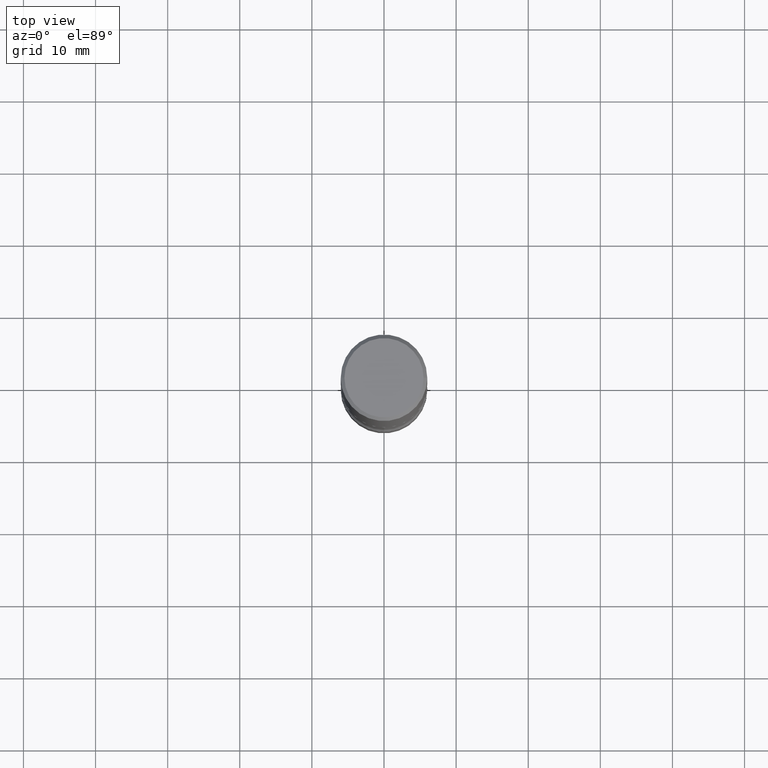
[diagram: clean part render]
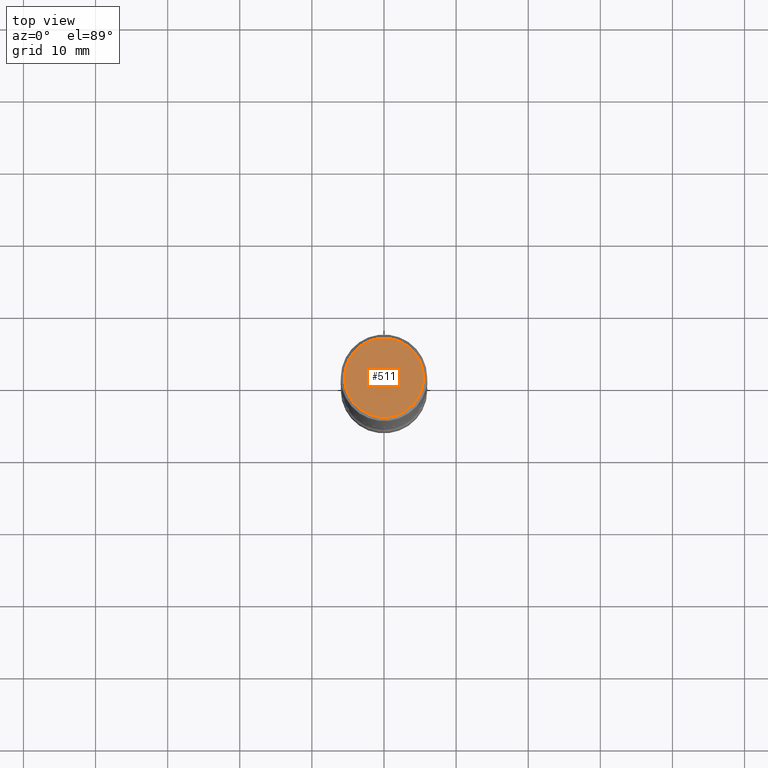
[diagram: same view with one face highlighted and labeled with its STEP entity id]
A machine part, top view. The second image highlights one B-rep face of the part: STEP entity #511.
In plain terms, the highlighted planar face has unit normal (0, -0, -1).
Its self-contained STEP definition (entity closure, byte-faithful):
#17 = CARTESIAN_POINT ( 'NONE',  ( -0.2162000000000002531, 1.544631344304203944E-15, -1.707404996041232555E-17 ) ) ;
#32 = AXIS2_PLACEMENT_3D ( 'NONE', #535, #457, #147 ) ;
#46 = ORIENTED_EDGE ( 'NONE', *, *, #462, .T. ) ;
#59 = PLANE ( 'NONE',  #32 ) ;
#74 = CIRCLE ( 'NONE', #330, 0.2162000000000002531 ) ;
#96 = CARTESIAN_POINT ( 'NONE',  ( 0.2162000000000002531, -1.586759460484353960E-15, -1.707404996039081677E-17 ) ) ;
#127 = CIRCLE ( 'NONE', #296, 0.2162000000000002531 ) ;
#147 = DIRECTION ( 'NONE',  ( -1.000000000000000000, 6.982962677686265922E-15, -4.876176775795935793E-29 ) ) ;
#167 = EDGE_CURVE ( 'NONE', #525, #353, #127, .T. ) ;
#176 = DIRECTION ( 'NONE',  ( 1.000000000000000000, -6.982962677686266711E-15, 4.875778670202480222E-29 ) ) ;
#180 = DIRECTION ( 'NONE',  ( -2.445468806185136597E-29, 3.491481338843145583E-15, 1.000000000000000000 ) ) ;
#225 = CARTESIAN_POINT ( 'NONE',  ( 4.175405657340879278E-46, -5.961372681521788801E-32, -1.707404996040164512E-17 ) ) ;
#245 = DIRECTION ( 'NONE',  ( 1.000000000000000000, -6.982962677686266711E-15, 4.875778670202480222E-29 ) ) ;
#296 = AXIS2_PLACEMENT_3D ( 'NONE', #408, #497, #245 ) ;
#330 = AXIS2_PLACEMENT_3D ( 'NONE', #225, #180, #176 ) ;
#337 = ORIENTED_EDGE ( 'NONE', *, *, #167, .T. ) ;
#353 = VERTEX_POINT ( 'NONE', #96 ) ;
#407 = FACE_OUTER_BOUND ( 'NONE', #510, .T. ) ;
#408 = CARTESIAN_POINT ( 'NONE',  ( 4.175405657340879278E-46, -5.961372681521788801E-32, -1.707404996040164512E-17 ) ) ;
#457 = DIRECTION ( 'NONE',  ( 2.438088387897960049E-29, -3.491481338843145188E-15, -1.000000000000000000 ) ) ;
#462 = EDGE_CURVE ( 'NONE', #353, #525, #74, .T. ) ;
#497 = DIRECTION ( 'NONE',  ( -2.445468806185136597E-29, 3.491481338843145583E-15, 1.000000000000000000 ) ) ;
#510 = EDGE_LOOP ( 'NONE', ( #337, #46 ) ) ;
#511 = ADVANCED_FACE ( 'NONE', ( #407 ), #59, .F. ) ;
#525 = VERTEX_POINT ( 'NONE', #17 ) ;
#535 = CARTESIAN_POINT ( 'NONE',  ( 1.509716530915772493E-15, 0.2162000000000002531, -7.633952904380896635E-16 ) ) ;